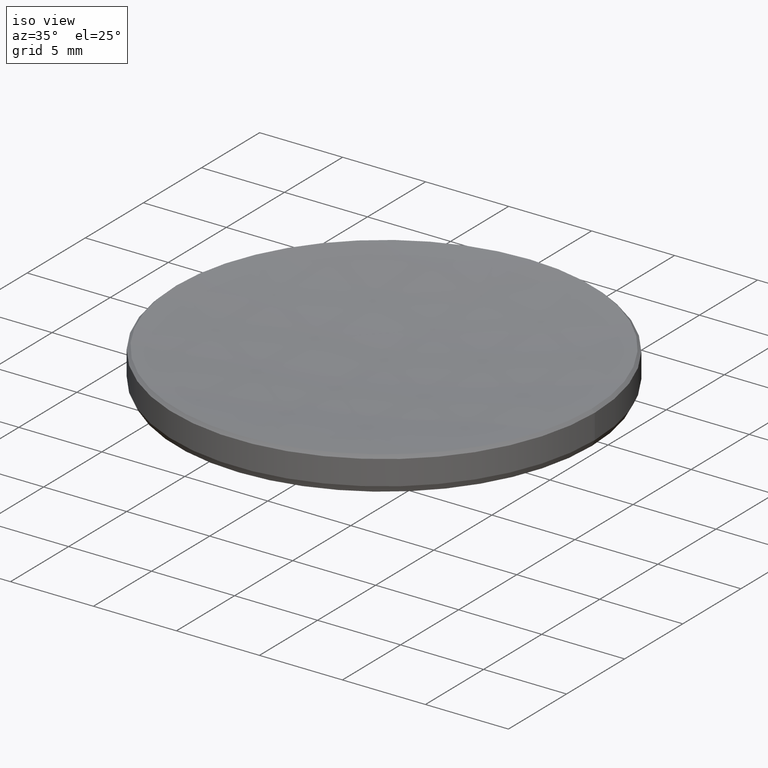
[diagram: clean part render]
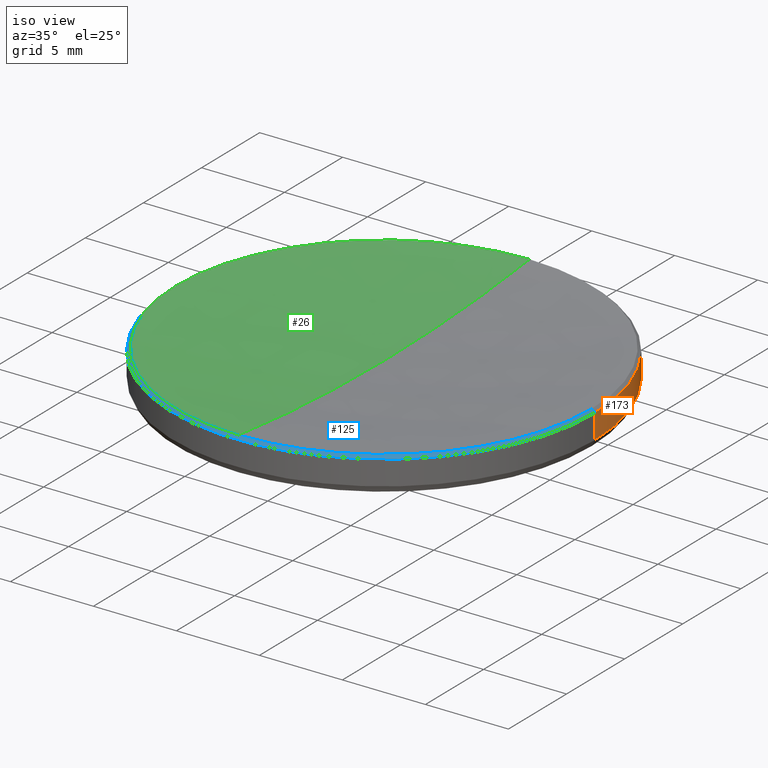
[diagram: same view with three faces highlighted in distinct colors, each labeled with its STEP entity id]
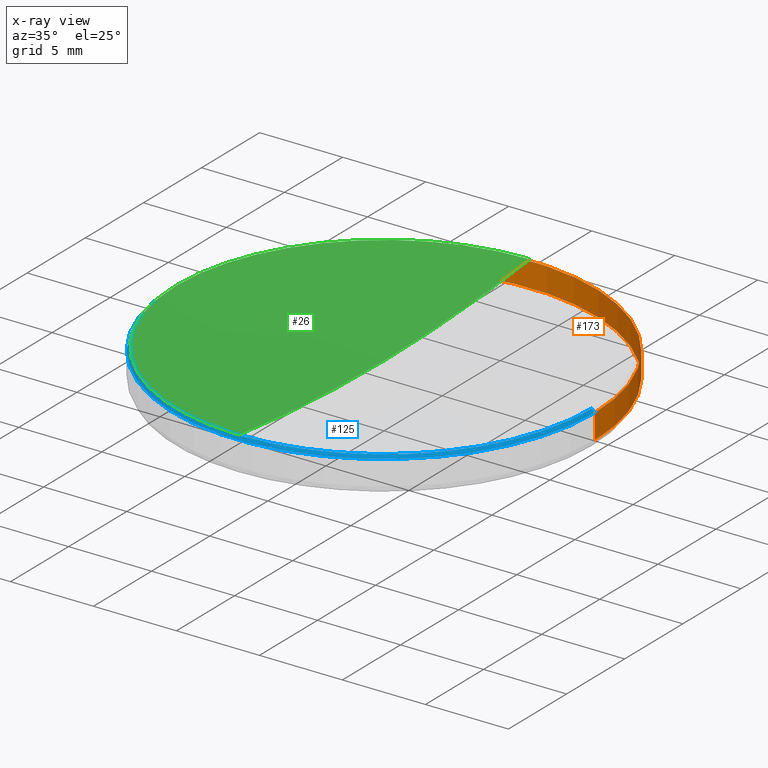
[diagram: x-ray of the same camera — body ghosted, the three highlighted faces saturated]
A machine part, iso view with three faces highlighted in distinct colors.
The next image is the same camera in x-ray (body ghosted, the three faces saturated) — at least one of them is partly hidden behind the body in this view.
Their STEP definitions:

[orange] entity #173 — the highlighted cylindrical surface (partial cylindrical patch) has radius 12.7 mm, axis along (-0, -0, -1).
#2 = AXIS2_PLACEMENT_3D ( 'NONE', #307, #180, #20 ) ;
#3 = CARTESIAN_POINT ( 'NONE',  ( 12.69999999999999929, 1.555301434917138433E-15, 5.799999999999999822 ) ) ;
#4 = VERTEX_POINT ( 'NONE', #3 ) ;
#20 = DIRECTION ( 'NONE',  ( -1.000000000000000000, 0.000000000000000000, 0.000000000000000000 ) ) ;
#24 = ORIENTED_EDGE ( 'NONE', *, *, #250, .T. ) ;
#42 = CARTESIAN_POINT ( 'NONE',  ( 12.69999999999999929, 1.555301434917138433E-15, 10.00000000000000000 ) ) ;
#45 = CARTESIAN_POINT ( 'NONE',  ( 12.69999999999999929, 1.555301434917138433E-15, 4.313967534857077624 ) ) ;
#47 = CYLINDRICAL_SURFACE ( 'NONE', #2, 12.69999999999999929 ) ;
#60 = ORIENTED_EDGE ( 'NONE', *, *, #327, .T. ) ;
#64 = VECTOR ( 'NONE', #203, 1000.000000000000000 ) ;
#65 = VECTOR ( 'NONE', #151, 1000.000000000000000 ) ;
#69 = DIRECTION ( 'NONE',  ( -1.000000000000000000, 0.000000000000000000, 0.000000000000000000 ) ) ;
#75 = EDGE_LOOP ( 'NONE', ( #220, #60, #24, #301 ) ) ;
#89 = CARTESIAN_POINT ( 'NONE',  ( -12.69999999999999929, 0.000000000000000000, 5.799999999999999822 ) ) ;
#97 = LINE ( 'NONE', #275, #64 ) ;
#122 = AXIS2_PLACEMENT_3D ( 'NONE', #322, #199, #297 ) ;
#143 = VERTEX_POINT ( 'NONE', #241 ) ;
#144 = AXIS2_PLACEMENT_3D ( 'NONE', #323, #300, #69 ) ;
#149 = CIRCLE ( 'NONE', #122, 12.69999999999999929 ) ;
#151 = DIRECTION ( 'NONE',  ( -0.000000000000000000, -0.000000000000000000, -1.000000000000000000 ) ) ;
#161 = EDGE_CURVE ( 'NONE', #276, #143, #97, .T. ) ;
#172 = FACE_OUTER_BOUND ( 'NONE', #75, .T. ) ;
#173 = ADVANCED_FACE ( 'NONE', ( #172 ), #47, .T. ) ;
#180 = DIRECTION ( 'NONE',  ( -0.000000000000000000, -0.000000000000000000, -1.000000000000000000 ) ) ;
#194 = VERTEX_POINT ( 'NONE', #45 ) ;
#199 = DIRECTION ( 'NONE',  ( 0.000000000000000000, 0.000000000000000000, -1.000000000000000000 ) ) ;
#203 = DIRECTION ( 'NONE',  ( -0.000000000000000000, -0.000000000000000000, -1.000000000000000000 ) ) ;
#220 = ORIENTED_EDGE ( 'NONE', *, *, #228, .T. ) ;
#228 = EDGE_CURVE ( 'NONE', #276, #4, #149, .T. ) ;
#240 = CIRCLE ( 'NONE', #144, 12.69999999999999929 ) ;
#241 = CARTESIAN_POINT ( 'NONE',  ( -12.69999999999999929, 0.000000000000000000, 4.313967534857077624 ) ) ;
#242 = LINE ( 'NONE', #42, #65 ) ;
#250 = EDGE_CURVE ( 'NONE', #194, #143, #240, .T. ) ;
#275 = CARTESIAN_POINT ( 'NONE',  ( -12.69999999999999929, 0.000000000000000000, 10.00000000000000000 ) ) ;
#276 = VERTEX_POINT ( 'NONE', #89 ) ;
#297 = DIRECTION ( 'NONE',  ( 1.000000000000000000, 0.000000000000000000, 0.000000000000000000 ) ) ;
#300 = DIRECTION ( 'NONE',  ( -0.000000000000000000, -0.000000000000000000, 1.000000000000000000 ) ) ;
#301 = ORIENTED_EDGE ( 'NONE', *, *, #161, .F. ) ;
#307 = CARTESIAN_POINT ( 'NONE',  ( 0.000000000000000000, 0.000000000000000000, 10.00000000000000000 ) ) ;
#322 = CARTESIAN_POINT ( 'NONE',  ( 0.000000000000000000, 0.000000000000000000, 5.799999999999999822 ) ) ;
#323 = CARTESIAN_POINT ( 'NONE',  ( 0.000000000000000000, 0.000000000000000000, 4.313967534857077624 ) ) ;
#327 = EDGE_CURVE ( 'NONE', #4, #194, #242, .T. ) ;

[blue] entity #125 — the highlighted conical surface has half-angle 45 deg.
#3 = CARTESIAN_POINT ( 'NONE',  ( 12.69999999999999929, 1.555301434917138433E-15, 5.799999999999999822 ) ) ;
#4 = VERTEX_POINT ( 'NONE', #3 ) ;
#18 = DIRECTION ( 'NONE',  ( -0.000000000000000000, -0.000000000000000000, 1.000000000000000000 ) ) ;
#21 = VERTEX_POINT ( 'NONE', #182 ) ;
#23 = AXIS2_PLACEMENT_3D ( 'NONE', #288, #56, #313 ) ;
#32 = VERTEX_POINT ( 'NONE', #134 ) ;
#52 = DIRECTION ( 'NONE',  ( 0.000000000000000000, 0.000000000000000000, -1.000000000000000000 ) ) ;
#54 = CARTESIAN_POINT ( 'NONE',  ( 0.000000000000000000, 0.000000000000000000, 5.978763596161118521 ) ) ;
#56 = DIRECTION ( 'NONE',  ( 0.000000000000000000, 0.000000000000000000, -1.000000000000000000 ) ) ;
#73 = EDGE_CURVE ( 'NONE', #138, #276, #211, .T. ) ;
#83 = FACE_OUTER_BOUND ( 'NONE', #248, .T. ) ;
#89 = CARTESIAN_POINT ( 'NONE',  ( -12.69999999999999929, 0.000000000000000000, 5.799999999999999822 ) ) ;
#98 = CARTESIAN_POINT ( 'NONE',  ( 12.52123640383887881, 1.533409208332859768E-15, 5.978763596161118521 ) ) ;
#118 = AXIS2_PLACEMENT_3D ( 'NONE', #271, #18, #200 ) ;
#125 = ADVANCED_FACE ( 'NONE', ( #83 ), #324, .T. ) ;
#132 = VECTOR ( 'NONE', #319, 1000.000000000000000 ) ;
#134 = CARTESIAN_POINT ( 'NONE',  ( 12.52123640383887704, 1.544355321624999001E-15, 5.978763596161104310 ) ) ;
#138 = VERTEX_POINT ( 'NONE', #261 ) ;
#148 = ORIENTED_EDGE ( 'NONE', *, *, #321, .F. ) ;
#152 = EDGE_CURVE ( 'NONE', #4, #276, #156, .T. ) ;
#156 = CIRCLE ( 'NONE', #23, 12.69999999999999929 ) ;
#162 = ORIENTED_EDGE ( 'NONE', *, *, #264, .F. ) ;
#165 = DIRECTION ( 'NONE',  ( -1.000000000000000000, 0.000000000000000000, 0.000000000000000000 ) ) ;
#167 = ORIENTED_EDGE ( 'NONE', *, *, #73, .T. ) ;
#182 = CARTESIAN_POINT ( 'NONE',  ( -1.533409208332850696E-15, -12.52123640383880421, 5.978763596161098093 ) ) ;
#186 = CIRCLE ( 'NONE', #256, 12.52123640383887704 ) ;
#200 = DIRECTION ( 'NONE',  ( 1.000000000000000000, 0.000000000000000000, 0.000000000000000000 ) ) ;
#211 = LINE ( 'NONE', #312, #213 ) ;
#213 = VECTOR ( 'NONE', #233, 1000.000000000000000 ) ;
#215 = DIRECTION ( 'NONE',  ( -0.000000000000000000, -0.000000000000000000, 1.000000000000000000 ) ) ;
#217 = LINE ( 'NONE', #98, #132 ) ;
#221 = CARTESIAN_POINT ( 'NONE',  ( 0.000000000000000000, 0.000000000000000000, 5.978763596161104310 ) ) ;
#233 = DIRECTION ( 'NONE',  ( -0.7071067811865510144, 0.000000000000000000, -0.7071067811865441310 ) ) ;
#237 = EDGE_CURVE ( 'NONE', #21, #32, #329, .T. ) ;
#243 = ORIENTED_EDGE ( 'NONE', *, *, #237, .F. ) ;
#248 = EDGE_LOOP ( 'NONE', ( #162, #243, #148, #167, #318 ) ) ;
#256 = AXIS2_PLACEMENT_3D ( 'NONE', #221, #215, #293 ) ;
#261 = CARTESIAN_POINT ( 'NONE',  ( -12.52123640383887704, 0.000000000000000000, 5.978763596161104310 ) ) ;
#264 = EDGE_CURVE ( 'NONE', #32, #4, #217, .T. ) ;
#271 = CARTESIAN_POINT ( 'NONE',  ( 0.000000000000000000, 0.000000000000000000, 5.978763596161104310 ) ) ;
#276 = VERTEX_POINT ( 'NONE', #89 ) ;
#288 = CARTESIAN_POINT ( 'NONE',  ( 0.000000000000000000, 0.000000000000000000, 5.799999999999999822 ) ) ;
#293 = DIRECTION ( 'NONE',  ( 1.000000000000000000, 0.000000000000000000, 0.000000000000000000 ) ) ;
#303 = AXIS2_PLACEMENT_3D ( 'NONE', #54, #52, #165 ) ;
#312 = CARTESIAN_POINT ( 'NONE',  ( -12.52123640383887881, 0.000000000000000000, 5.978763596161118521 ) ) ;
#313 = DIRECTION ( 'NONE',  ( 1.000000000000000000, 0.000000000000000000, 0.000000000000000000 ) ) ;
#318 = ORIENTED_EDGE ( 'NONE', *, *, #152, .F. ) ;
#319 = DIRECTION ( 'NONE',  ( 0.7071067811865510144, 8.659560562354975999E-17, -0.7071067811865441310 ) ) ;
#321 = EDGE_CURVE ( 'NONE', #138, #21, #186, .T. ) ;
#324 = CONICAL_SURFACE ( 'NONE', #303, 12.52123640383887881, 0.7853981633974531640 ) ;
#329 = CIRCLE ( 'NONE', #118, 12.52123640383887704 ) ;

[green] entity #26 — the highlighted spherical surface has radius 106.9 mm.
#21 = VERTEX_POINT ( 'NONE', #182 ) ;
#26 = ADVANCED_FACE ( 'NONE', ( #279 ), #209, .F. ) ;
#43 = CIRCLE ( 'NONE', #159, 106.9000000000000057 ) ;
#49 = DIRECTION ( 'NONE',  ( -0.000000000000000000, -0.000000000000000000, 1.000000000000000000 ) ) ;
#50 = EDGE_CURVE ( 'NONE', #153, #138, #94, .T. ) ;
#53 = EDGE_LOOP ( 'NONE', ( #260, #294, #299, #67 ) ) ;
#66 = DIRECTION ( 'NONE',  ( -1.000000000000000000, 1.224646799147353207E-16, 0.000000000000000000 ) ) ;
#67 = ORIENTED_EDGE ( 'NONE', *, *, #321, .T. ) ;
#78 = CARTESIAN_POINT ( 'NONE',  ( 0.000000000000000000, 0.000000000000000000, 112.1429225148808655 ) ) ;
#81 = CARTESIAN_POINT ( 'NONE',  ( 0.000000000000000000, 12.52123640383880421, 5.978763596161098093 ) ) ;
#94 = CIRCLE ( 'NONE', #273, 12.52123640383887704 ) ;
#138 = VERTEX_POINT ( 'NONE', #261 ) ;
#146 = DIRECTION ( 'NONE',  ( 0.000000000000000000, 0.000000000000000000, -1.000000000000000000 ) ) ;
#153 = VERTEX_POINT ( 'NONE', #81 ) ;
#159 = AXIS2_PLACEMENT_3D ( 'NONE', #216, #66, #179 ) ;
#160 = CIRCLE ( 'NONE', #311, 106.9000000000000057 ) ;
#164 = VERTEX_POINT ( 'NONE', #306 ) ;
#179 = DIRECTION ( 'NONE',  ( -1.224646799147353207E-16, -1.000000000000000000, 0.000000000000000000 ) ) ;
#182 = CARTESIAN_POINT ( 'NONE',  ( -1.533409208332850696E-15, -12.52123640383880421, 5.978763596161098093 ) ) ;
#184 = DIRECTION ( 'NONE',  ( 0.000000000000000000, 1.000000000000000000, 0.000000000000000000 ) ) ;
#186 = CIRCLE ( 'NONE', #256, 12.52123640383887704 ) ;
#195 = DIRECTION ( 'NONE',  ( 1.000000000000000000, 0.000000000000000000, 0.000000000000000000 ) ) ;
#209 = SPHERICAL_SURFACE ( 'NONE', #229, 106.9000000000000057 ) ;
#215 = DIRECTION ( 'NONE',  ( -0.000000000000000000, -0.000000000000000000, 1.000000000000000000 ) ) ;
#216 = CARTESIAN_POINT ( 'NONE',  ( 0.000000000000000000, 0.000000000000000000, 112.1429225148808655 ) ) ;
#221 = CARTESIAN_POINT ( 'NONE',  ( 0.000000000000000000, 0.000000000000000000, 5.978763596161104310 ) ) ;
#225 = EDGE_CURVE ( 'NONE', #164, #21, #43, .T. ) ;
#229 = AXIS2_PLACEMENT_3D ( 'NONE', #78, #252, #184 ) ;
#252 = DIRECTION ( 'NONE',  ( -1.000000000000000000, 0.000000000000000000, 0.000000000000000000 ) ) ;
#256 = AXIS2_PLACEMENT_3D ( 'NONE', #221, #215, #293 ) ;
#257 = DIRECTION ( 'NONE',  ( 1.000000000000000000, 0.000000000000000000, 0.000000000000000000 ) ) ;
#260 = ORIENTED_EDGE ( 'NONE', *, *, #225, .F. ) ;
#261 = CARTESIAN_POINT ( 'NONE',  ( -12.52123640383887704, 0.000000000000000000, 5.978763596161104310 ) ) ;
#272 = CARTESIAN_POINT ( 'NONE',  ( 0.000000000000000000, 0.000000000000000000, 112.1429225148808655 ) ) ;
#273 = AXIS2_PLACEMENT_3D ( 'NONE', #281, #49, #257 ) ;
#279 = FACE_OUTER_BOUND ( 'NONE', #53, .T. ) ;
#281 = CARTESIAN_POINT ( 'NONE',  ( 0.000000000000000000, 0.000000000000000000, 5.978763596161104310 ) ) ;
#293 = DIRECTION ( 'NONE',  ( 1.000000000000000000, 0.000000000000000000, 0.000000000000000000 ) ) ;
#294 = ORIENTED_EDGE ( 'NONE', *, *, #296, .T. ) ;
#296 = EDGE_CURVE ( 'NONE', #164, #153, #160, .T. ) ;
#299 = ORIENTED_EDGE ( 'NONE', *, *, #50, .T. ) ;
#306 = CARTESIAN_POINT ( 'NONE',  ( 0.000000000000000000, 6.545737141442603608E-15, 5.242922514880857143 ) ) ;
#311 = AXIS2_PLACEMENT_3D ( 'NONE', #272, #195, #146 ) ;
#321 = EDGE_CURVE ( 'NONE', #138, #21, #186, .T. ) ;